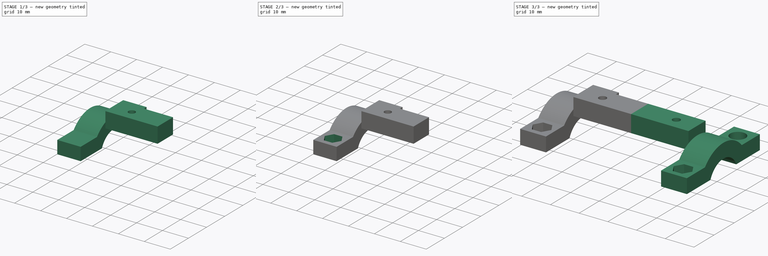
[diagram: build sequence overview — one tinted view per stage of 3, left to right]
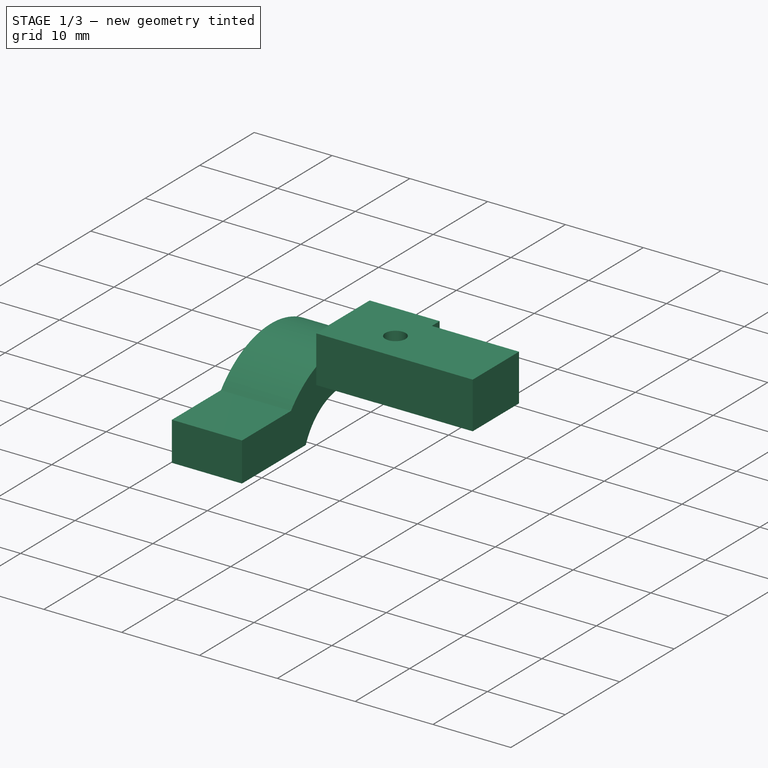
[diagram: stage 1 of 3 — iso view after this stage's code; geometry added in this stage tinted green]
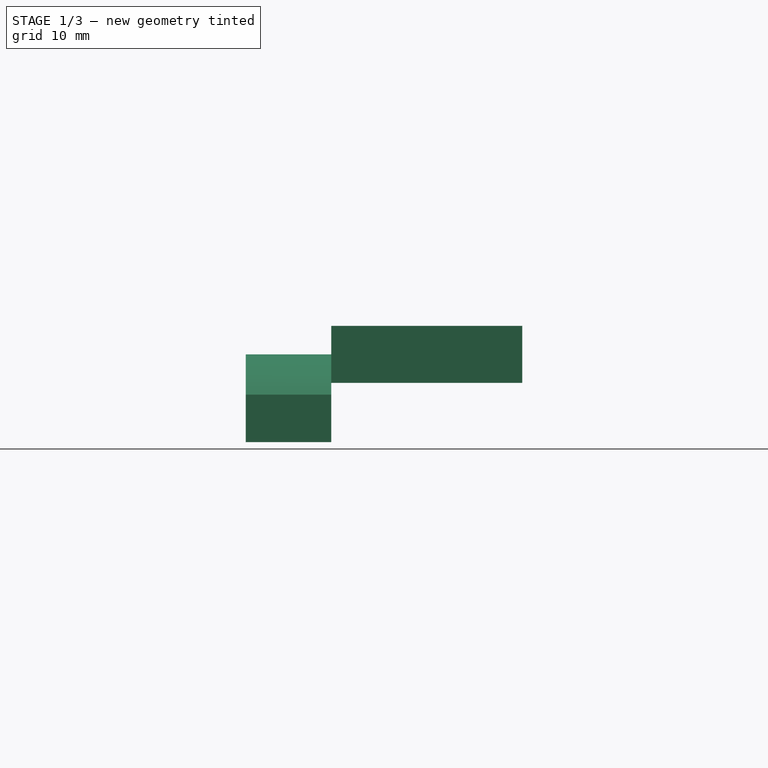
[diagram: stage 1 of 3 — front view after this stage's code; geometry added in this stage tinted green]
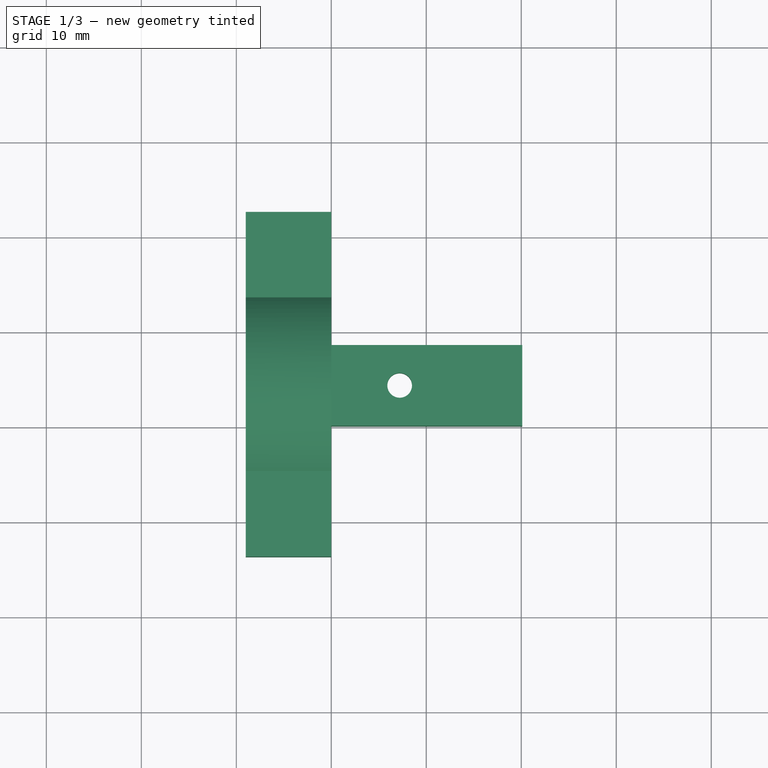
[diagram: stage 1 of 3 — top view after this stage's code; geometry added in this stage tinted green]
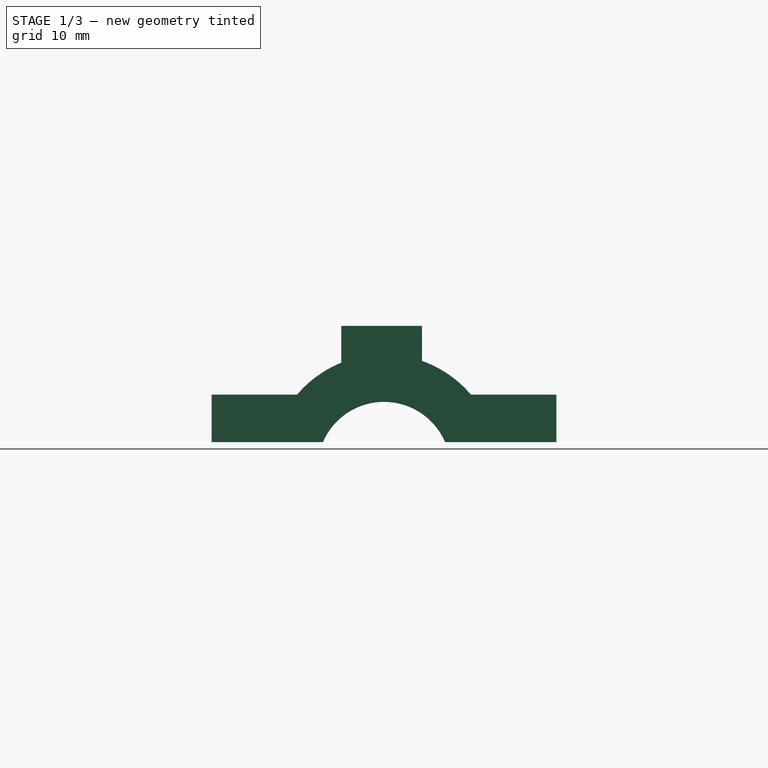
[diagram: stage 1 of 3 — right view after this stage's code; geometry added in this stage tinted green]
FCSTD DOCUMENT  (FreeCAD 0.14R3700 (Git))
Label: LCD_Bracket
License: CC-BY 3.0
LicenseURL: http://creativecommons.org/licenses/by/3.0/
objects: Sketcher::SketchObject×6, PartDesign::Pocket×4, PartDesign::Pad×2, Part::Mirroring×1, Part::Fuse×1
note: 20 computed .brp shape members not serialized (recipe doc carries the construction recipe); baked Part::Feature solids carry a one-line shape summary decoded from their .brp

FEATURE [Sketcher::SketchObject] Sketch
  sketch-geometry (6):
    g0: LineSegment StartX=0 StartY=8.5 StartZ=0 EndX=20.1 EndY=8.5 EndZ=0
    g1: LineSegment StartX=20.1 StartY=8.5 StartZ=0 EndX=20.1 EndY=0 EndZ=0
    g2: LineSegment StartX=20.1 StartY=0 StartZ=0 EndX=0 EndY=0 EndZ=0
    g3: LineSegment StartX=0 StartY=0 StartZ=0 EndX=0 EndY=8.5 EndZ=0
    g4: Circle CenterX=7.2 CenterY=4.25 CenterZ=0 NormalX=0 NormalY=0 NormalZ=1 Radius=1.3
    g5: LineSegment [constr] StartX=8.5 StartY=8.5 StartZ=0 EndX=8.5 EndY=0 EndZ=0
  constraints (18):
    c: Coincident(g0,g1)
    c: Coincident(g1,g2)
    c: Coincident(g2,g3)
    c: Coincident(g3,g0)
    c: Horizontal(g0)
    c: Horizontal(g2)
    c: Vertical(g1)
    c: Vertical(g3)
    c: DistanceX(g0,g0) = 20.1
    c: DistanceY(g0,g2) = -8.5
    c: Coincident(g2,g-1)
    c: Radius(g4) = 1.3
    c: Vertical(g5)
    c: PointOnObject(g5,g0)
    c: PointOnObject(g5,g2)
    c: DistanceX(g5,g0) = 11.6
    c: Tangent(g4,g5)
    c: DistanceY(g0,g4) = -4.25
FEATURE [PartDesign::Pad] Pad
  Length = 6
  Length2 = 3
  Sketch = -> Sketch
  Type = 0
FEATURE [Sketcher::SketchObject] Sketch001
  ExternalGeometry = -> [Pad]
  Placement = pos=(0,0,0) rot=(1,0,0;3.14159rad)
  Support = -> Pad [Face6]
  sketch-geometry (7):
    g0: Circle [constr] CenterX=7.2 CenterY=-4.25 CenterZ=0 NormalX=0 NormalY=0 NormalZ=1 Radius=2.56
    g1: LineSegment StartX=5.72198 StartY=-1.69 StartZ=0 EndX=8.67802 EndY=-1.69 EndZ=0
    g2: LineSegment StartX=8.67802 StartY=-1.69 StartZ=0 EndX=10.156 EndY=-4.25 EndZ=0
    g3: LineSegment StartX=10.156 StartY=-4.25 StartZ=0 EndX=8.67802 EndY=-6.81 EndZ=0
    g4: LineSegment StartX=8.67802 StartY=-6.81 StartZ=0 EndX=5.72198 EndY=-6.81 EndZ=0
    g5: LineSegment StartX=5.72198 StartY=-6.81 StartZ=0 EndX=4.24397 EndY=-4.25 EndZ=0
    g6: LineSegment StartX=4.24397 StartY=-4.25 StartZ=0 EndX=5.72198 EndY=-1.69 EndZ=0
  constraints (21):
    c: Radius(g0) = 2.56
    c: Coincident(g0,g-3)
    c: Coincident(g1,g2)
    c: Coincident(g2,g3)
    c: Coincident(g3,g4)
    c: Coincident(g4,g5)
    c: Coincident(g5,g6)
    c: Coincident(g1,g6)
    c: Horizontal(g4)
    c: Horizontal(g1)
    c: Tangent(g5,g0)
    c: Tangent(g6,g0)
    c: Tangent(g4,g0)
    c: Tangent(g2,g0)
    c: Tangent(g0,g3)
    c: Tangent(g1,g0)
    c: Equal(g2,g1)
    c: Equal(g1,g6)
    c: Equal(g6,g5)
    c: Equal(g5,g4)
    c: Equal(g4,g3)
FEATURE [PartDesign::Pocket] Pocket
  Length = 3
  Sketch = -> Sketch001
  Type = 0
FEATURE [Sketcher::SketchObject] Sketch002
  ExternalGeometry = -> [Pocket]
  Placement = pos=(0,0,0) rot=(0.57735,-0.57735,-0.57735;2.0944rad)
  Support = -> Pocket [Face2]
  sketch-geometry (9):
    g0: ArcOfCircle CenterX=-4.5 CenterY=-9 CenterZ=0 NormalX=0 NormalY=0 NormalZ=1 Radius=7 StartAngle=0.406537 EndAngle=2.73506
    g1: ArcOfCircle CenterX=-4.5 CenterY=-9 CenterZ=0 NormalX=0 NormalY=0 NormalZ=1 Radius=12 StartAngle=0.704082 EndAngle=2.43751
    g2: LineSegment [constr] StartX=-8.5 StartY=3 StartZ=0 EndX=0 EndY=3 EndZ=0
    g3: LineSegment StartX=13.6465 StartY=-1.23198 StartZ=0 EndX=4.64647 EndY=-1.23198 EndZ=0
    g4: LineSegment StartX=-22.6465 StartY=-1.23198 StartZ=0 EndX=-22.6465 EndY=-6.23198 EndZ=0
    g5: LineSegment StartX=13.6465 StartY=-6.23198 StartZ=0 EndX=13.6465 EndY=-1.23198 EndZ=0
    g6: LineSegment StartX=-13.6465 StartY=-1.23198 StartZ=0 EndX=-22.6465 EndY=-1.23198 EndZ=0
    g7: LineSegment StartX=13.6465 StartY=-6.23198 StartZ=0 EndX=1.92947 EndY=-6.23198 EndZ=0
    g8: LineSegment StartX=-10.9295 StartY=-6.23198 StartZ=0 EndX=-22.6465 EndY=-6.23198 EndZ=0
  constraints (28):
    c: Radius(g0) = 7
    c: Radius(g1) = 12
    c: DistanceX(g0) = -4.5
    c: Horizontal(g2)
    c: DistanceY(g2,g-3) = -3
    c: DistanceX(g-3,g2) = 0
    c: DistanceX(g-1,g2) = 0
    c: Tangent(g1,g2)
    c: Coincident(g6,g4)
    c: Coincident(g5,g3)
    c: Horizontal(g3)
    c: Vertical(g4)
    c: Vertical(g5)
    c: DistanceY(g5) = 5
    c: Tangent(g3,g6)
    c: Horizontal(g7)
    c: Tangent(g7,g8)
    c: Coincident(g0,g8)
    c: Coincident(g0,g7)
    c: Coincident(g5,g7)
    c: Coincident(g4,g8)
    c: Coincident(g1,g6)
    c: Coincident(g1,g3)
    c: DistanceX(g3) = -9
    c: Equal(g6,g3)
    c: Coincident()
    c: Coincident(g0)
    c: Coincident(g0,g1)
FEATURE [PartDesign::Pad] Pad001
  Length = 9
  Length2 = 3
  Sketch = -> Sketch002
  Type = 0
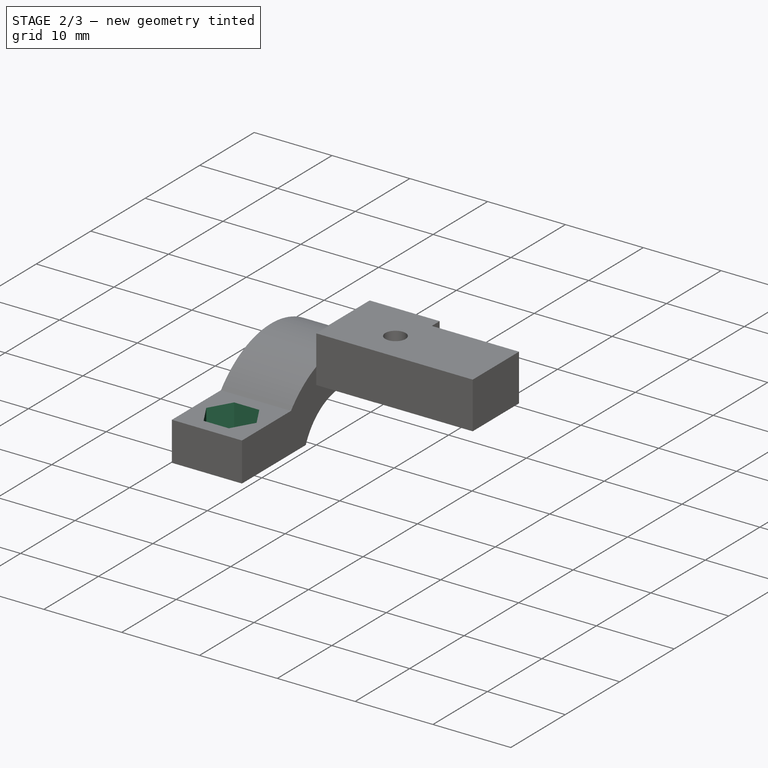
[diagram: stage 2 of 3 — iso view after this stage's code; geometry added in this stage tinted green]
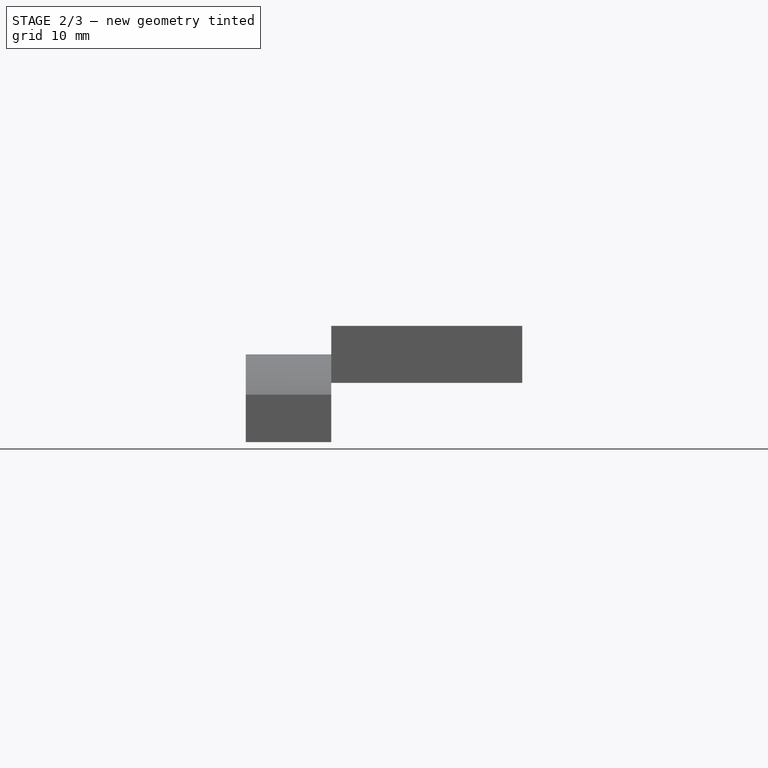
[diagram: stage 2 of 3 — front view after this stage's code; geometry added in this stage tinted green]
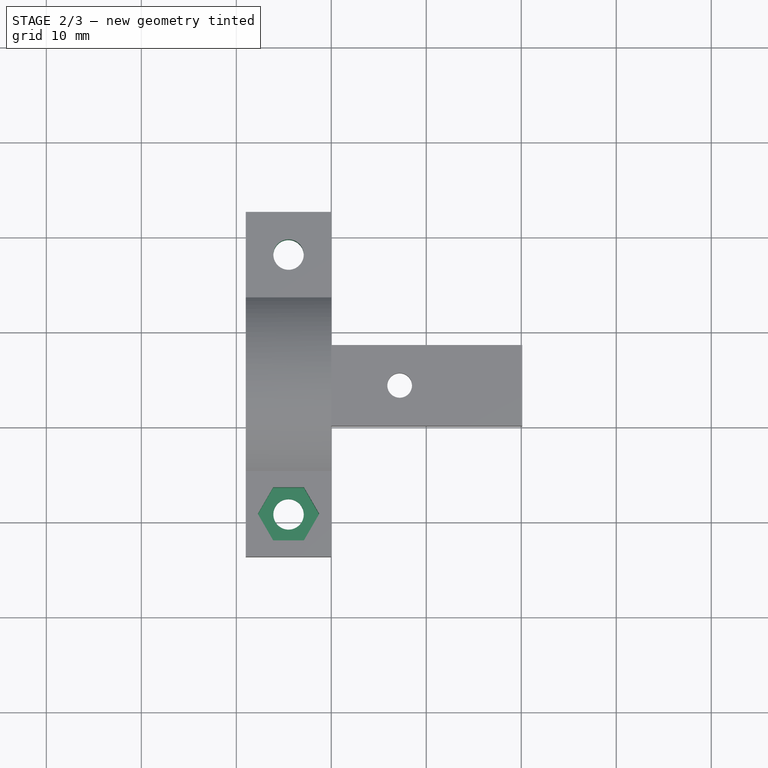
[diagram: stage 2 of 3 — top view after this stage's code; geometry added in this stage tinted green]
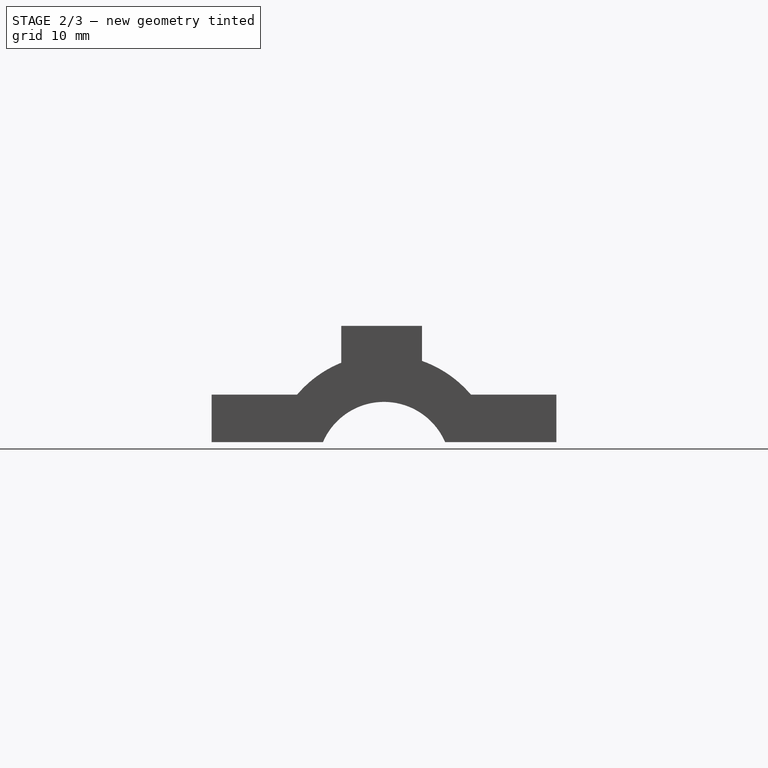
[diagram: stage 2 of 3 — right view after this stage's code; geometry added in this stage tinted green]
FEATURE [Sketcher::SketchObject] Sketch003
  ExternalGeometry = -> [Pad001]
  Placement = pos=(0,0,-1.23198) rot=(0,0,1;0rad)
  Support = -> Pad001 [Face19]
  sketch-geometry (2):
    g0: Circle CenterX=-4.5 CenterY=18.1465 CenterZ=0 NormalX=0 NormalY=0 NormalZ=1 Radius=1.6
    g1: Circle CenterX=-4.5 CenterY=-9.14647 CenterZ=0 NormalX=0 NormalY=0 NormalZ=1 Radius=1.6
  constraints (6):
    c: Radius(g0) = 1.6
    c: DistanceX(g0,g-3) = 4.5
    c: DistanceY(g0,g-3) = 4.5
    c: Radius(g1) = 1.6
    c: DistanceY(g-4,g1) = 4.5
    c: DistanceX(g1,g-4) = -4.5
FEATURE [PartDesign::Pocket] Pocket001
  Length = 5
  Sketch = -> Sketch003
  Type = 0
FEATURE [Sketcher::SketchObject] Sketch004
  ExternalGeometry = -> [Pocket001]
  Placement = pos=(0,0,-1.23198) rot=(0,0,1;0rad)
  Support = -> Pocket001 [Face21]
  sketch-geometry (7):
    g0: Circle [constr] CenterX=-4.5 CenterY=-9.14647 CenterZ=0 NormalX=0 NormalY=0 NormalZ=1 Radius=2.8
    g1: LineSegment StartX=-6.11658 StartY=-6.34647 StartZ=0 EndX=-2.88342 EndY=-6.34647 EndZ=0
    g2: LineSegment StartX=-2.88342 StartY=-6.34647 StartZ=0 EndX=-1.26684 EndY=-9.14647 EndZ=0
    g3: LineSegment StartX=-1.26684 StartY=-9.14647 StartZ=0 EndX=-2.88342 EndY=-11.9465 EndZ=0
    g4: LineSegment StartX=-2.88342 StartY=-11.9465 StartZ=0 EndX=-6.11658 EndY=-11.9465 EndZ=0
    g5: LineSegment StartX=-6.11658 StartY=-11.9465 StartZ=0 EndX=-7.73316 EndY=-9.14647 EndZ=0
    g6: LineSegment StartX=-7.73316 StartY=-9.14647 StartZ=0 EndX=-6.11658 EndY=-6.34647 EndZ=0
  constraints (21):
    c: Radius(g0) = 2.8
    c: Coincident(g0,g-3)
    c: Coincident(g1,g2)
    c: Coincident(g2,g3)
    c: Coincident(g3,g4)
    c: Coincident(g4,g5)
    c: Coincident(g5,g6)
    c: Coincident(g1,g6)
    c: Horizontal(g4)
    c: Tangent(g4,g0)
    c: Horizontal(g1)
    c: Tangent(g1,g0)
    c: Tangent(g2,g0)
    c: Tangent(g3,g0)
    c: Tangent(g5,g0)
    c: Tangent(g6,g0)
    c: Equal(g1,g2)
    c: Equal(g2,g3)
    c: Equal(g3,g4)
    c: Equal(g4,g5)
    c: Equal(g5,g6)
FEATURE [PartDesign::Pocket] Pocket002
  Length = 3.8
  Sketch = -> Sketch004
  Type = 0
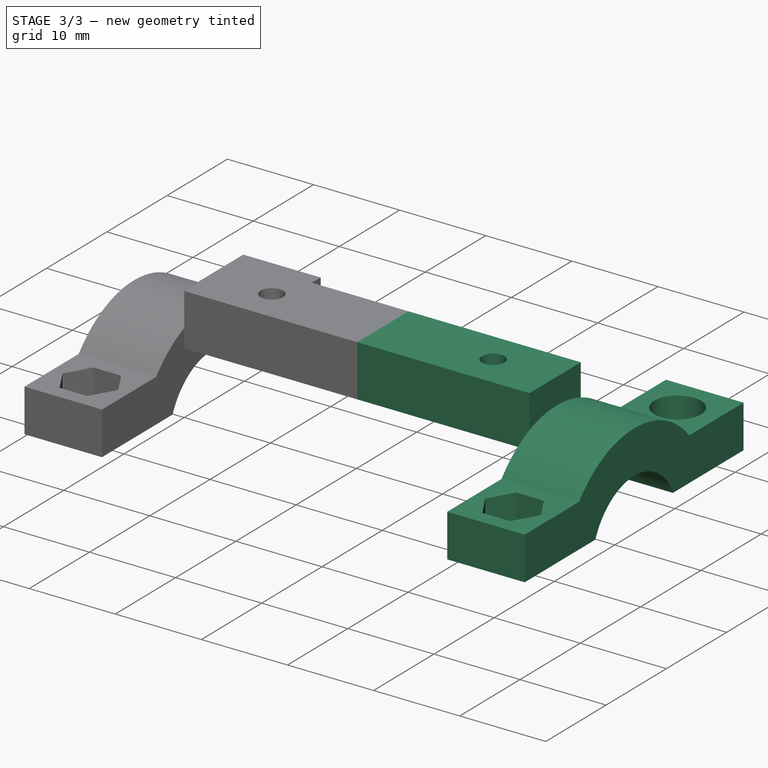
[diagram: stage 3 of 3 — iso view after this stage's code; geometry added in this stage tinted green]
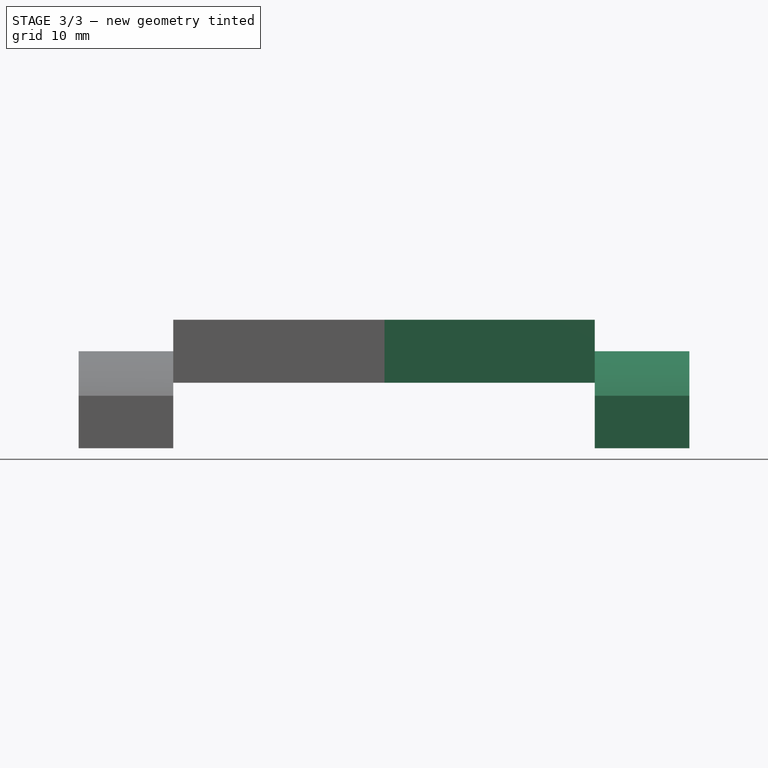
[diagram: stage 3 of 3 — front view after this stage's code; geometry added in this stage tinted green]
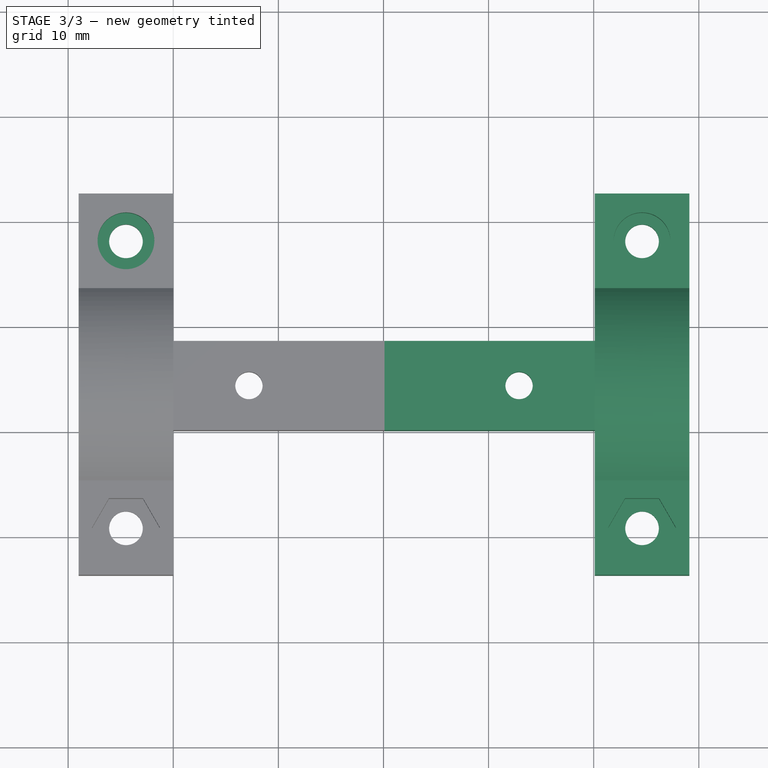
[diagram: stage 3 of 3 — top view after this stage's code; geometry added in this stage tinted green]
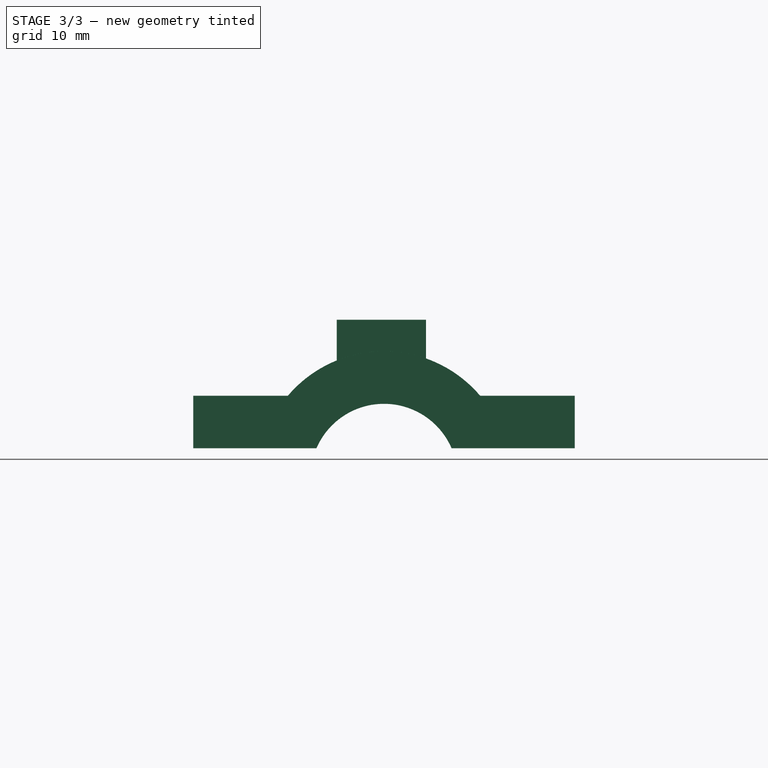
[diagram: stage 3 of 3 — right view after this stage's code; geometry added in this stage tinted green]
FEATURE [Sketcher::SketchObject] Sketch005
  ExternalGeometry = -> [Pocket002]
  Placement = pos=(0,0,-1.23198) rot=(0,0,1;0rad)
  Support = -> Pocket002 [Face19]
  sketch-geometry (1):
    g0: Circle CenterX=-4.5 CenterY=18.1465 CenterZ=0 NormalX=0 NormalY=0 NormalZ=1 Radius=2.7
  constraints (2):
    c: Radius(g0) = 2.7
    c: Coincident(g0,g-3)
FEATURE [PartDesign::Pocket] Pocket003
  Length = 3
  Sketch = -> Sketch005
  Type = 0
FEATURE [Part::Mirroring] Part__Mirroring  label="Pocket003 (Mirror #1)"
  Base = (0,0,0)
  Normal = (1,0,0)
  Placement = pos=(40.1,0,0) rot=(0,0,1;0rad)
  Source = -> Pocket003
FEATURE [Part::Fuse] Fusion
  Base = -> Pocket003
  Tool = -> Part__Mirroring
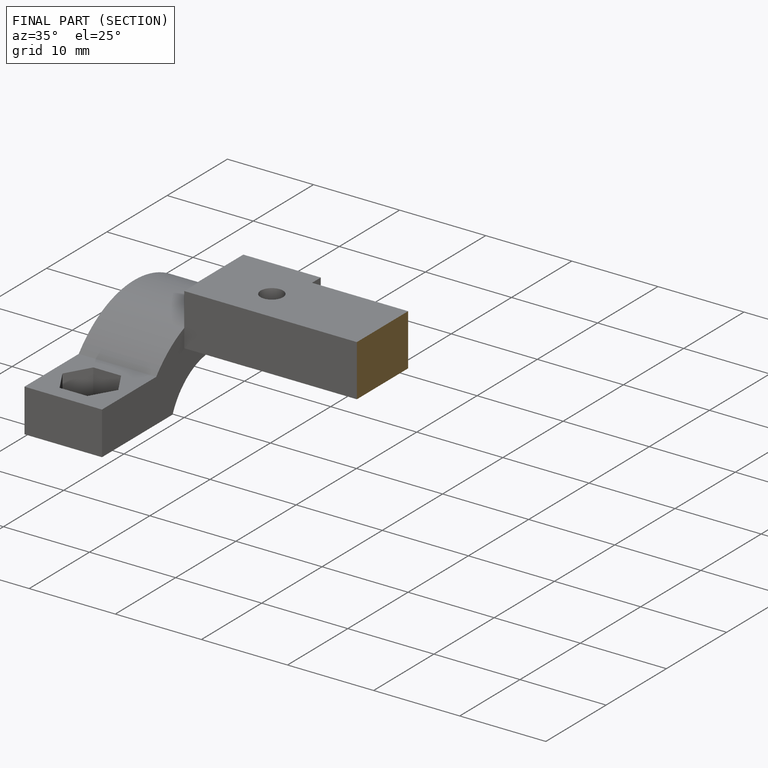
[diagram: finished part — half-section view (interior)]
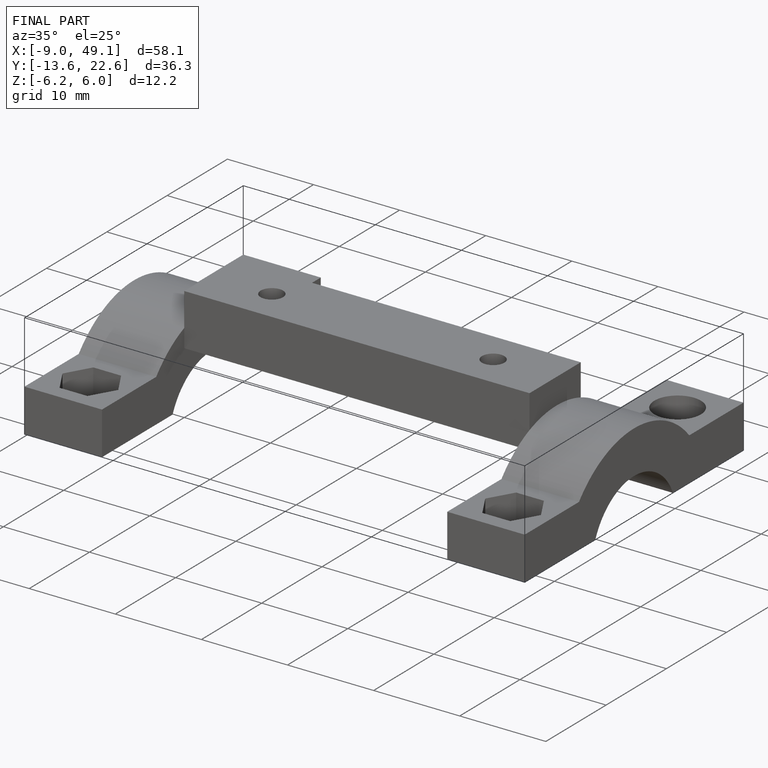
[diagram: finished part — iso view with bounding-box wireframe]
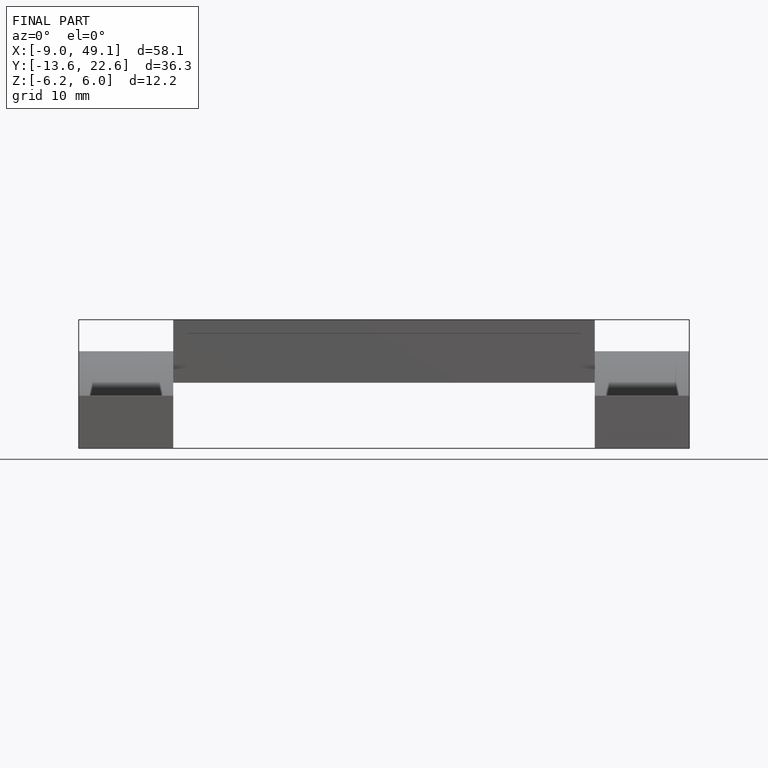
[diagram: finished part — front view with bounding-box wireframe]
